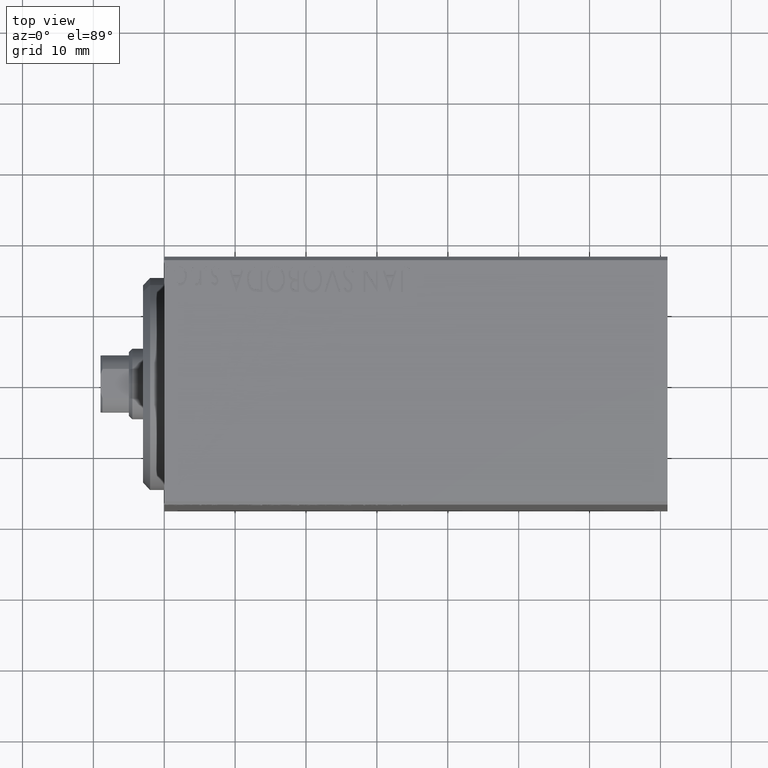
[diagram: clean part render]
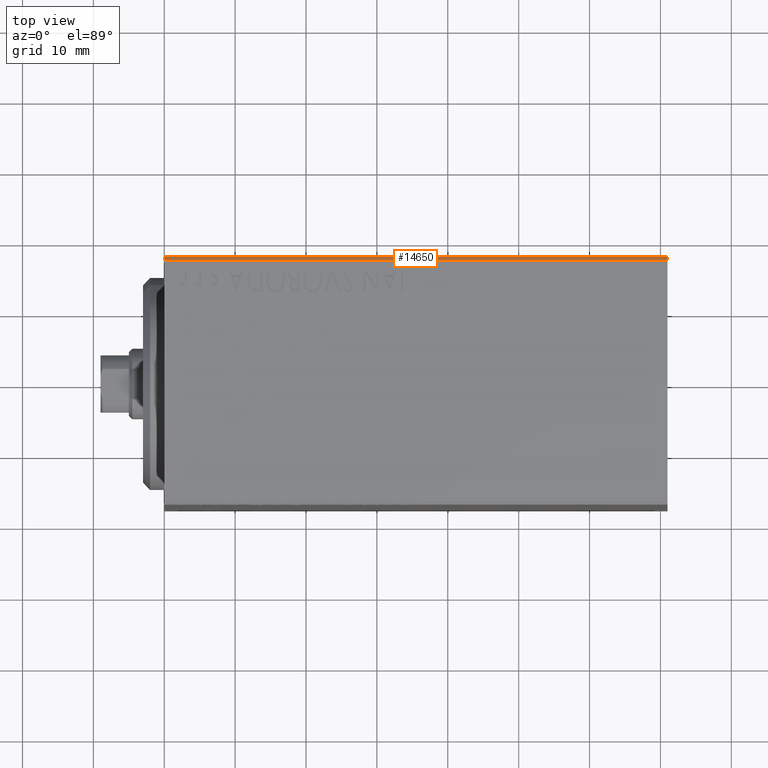
[diagram: same view with one face highlighted and labeled with its STEP entity id]
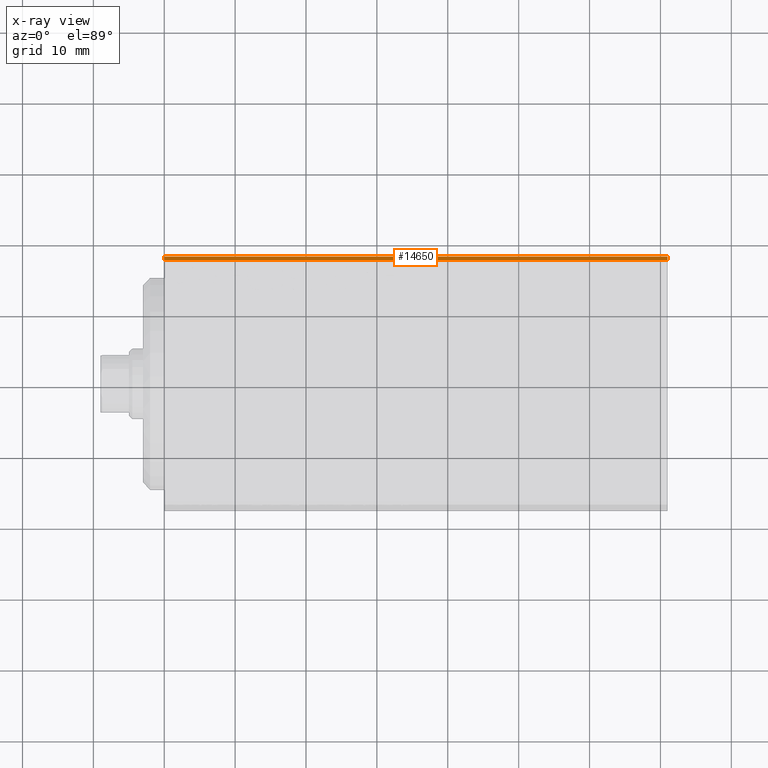
[diagram: x-ray of the same camera — body ghosted, the highlighted face saturated]
A machine part, top view. The second image highlights one B-rep face of the part: STEP entity #14650.
The next image is the same camera in x-ray: the body ghosted, the highlighted face saturated — about 0% of this face is hidden behind the body in this view.
In plain terms, the highlighted planar face has unit normal (-0, -0.7071, -0.7071).
Its self-contained STEP definition (entity closure, byte-faithful):
#177 = EDGE_CURVE ( 'NONE', #5210, #34684, #37292, .T. ) ;
#2070 = CARTESIAN_POINT ( 'NONE',  ( 0.000000000000000000, 17.00000000000001421, 27.50000000000000355 ) ) ;
#4042 = DIRECTION ( 'NONE',  ( -1.000000000000000000, 0.000000000000000000, 0.000000000000000000 ) ) ;
#5210 = VERTEX_POINT ( 'NONE', #19547 ) ;
#5703 = AXIS2_PLACEMENT_3D ( 'NONE', #27597, #27378, #10277 ) ;
#9989 = CARTESIAN_POINT ( 'NONE',  ( 71.00000000000000000, 22.25000000000000711, 22.25000000000000711 ) ) ;
#10101 = VECTOR ( 'NONE', #38831, 1000.000000000000000 ) ;
#10277 = DIRECTION ( 'NONE',  ( -1.000000000000000000, 0.000000000000000000, 0.000000000000000000 ) ) ;
#11314 = CARTESIAN_POINT ( 'NONE',  ( 71.00000000000000000, 17.50000000000000000, 27.00000000000001776 ) ) ;
#11571 = EDGE_CURVE ( 'NONE', #34684, #23758, #34461, .T. ) ;
#11695 = CARTESIAN_POINT ( 'NONE',  ( 0.000000000000000000, 17.00000000000001421, 27.50000000000000355 ) ) ;
#13584 = EDGE_CURVE ( 'NONE', #23758, #35194, #38492, .T. ) ;
#13821 = PLANE ( 'NONE',  #5703 ) ;
#14650 = ADVANCED_FACE ( 'NONE', ( #30712 ), #13821, .F. ) ;
#19547 = CARTESIAN_POINT ( 'NONE',  ( 71.00000000000000000, 17.50000000000000000, 27.00000000000001776 ) ) ;
#22427 = EDGE_LOOP ( 'NONE', ( #32653, #43748, #31993, #34647 ) ) ;
#22428 = CARTESIAN_POINT ( 'NONE',  ( 0.000000000000000000, 17.50000000000000000, 27.00000000000001776 ) ) ;
#23530 = DIRECTION ( 'NONE',  ( -0.000000000000000000, -0.7071067811865474617, 0.7071067811865474617 ) ) ;
#23758 = VERTEX_POINT ( 'NONE', #11695 ) ;
#25516 = VECTOR ( 'NONE', #35818, 1000.000000000000114 ) ;
#27378 = DIRECTION ( 'NONE',  ( -0.000000000000000000, -0.7071067811865475727, -0.7071067811865475727 ) ) ;
#27597 = CARTESIAN_POINT ( 'NONE',  ( 71.00000000000000000, 17.00000000000001421, 27.50000000000000355 ) ) ;
#27742 = CARTESIAN_POINT ( 'NONE',  ( 71.00000000000000000, 17.00000000000001421, 27.50000000000000355 ) ) ;
#27926 = EDGE_CURVE ( 'NONE', #35194, #5210, #28199, .T. ) ;
#28199 = LINE ( 'NONE', #11314, #10101 ) ;
#30712 = FACE_OUTER_BOUND ( 'NONE', #22427, .T. ) ;
#31126 = CARTESIAN_POINT ( 'NONE',  ( 71.00000000000000000, 17.00000000000001421, 27.50000000000000355 ) ) ;
#31473 = VECTOR ( 'NONE', #23530, 1000.000000000000114 ) ;
#31993 = ORIENTED_EDGE ( 'NONE', *, *, #13584, .F. ) ;
#32653 = ORIENTED_EDGE ( 'NONE', *, *, #177, .F. ) ;
#34461 = LINE ( 'NONE', #31126, #43887 ) ;
#34647 = ORIENTED_EDGE ( 'NONE', *, *, #11571, .F. ) ;
#34684 = VERTEX_POINT ( 'NONE', #27742 ) ;
#35194 = VERTEX_POINT ( 'NONE', #22428 ) ;
#35818 = DIRECTION ( 'NONE',  ( -0.000000000000000000, 0.7071067811865474617, -0.7071067811865474617 ) ) ;
#37292 = LINE ( 'NONE', #9989, #31473 ) ;
#38492 = LINE ( 'NONE', #2070, #25516 ) ;
#38831 = DIRECTION ( 'NONE',  ( 1.000000000000000000, 0.000000000000000000, 0.000000000000000000 ) ) ;
#43748 = ORIENTED_EDGE ( 'NONE', *, *, #27926, .F. ) ;
#43887 = VECTOR ( 'NONE', #4042, 1000.000000000000000 ) ;